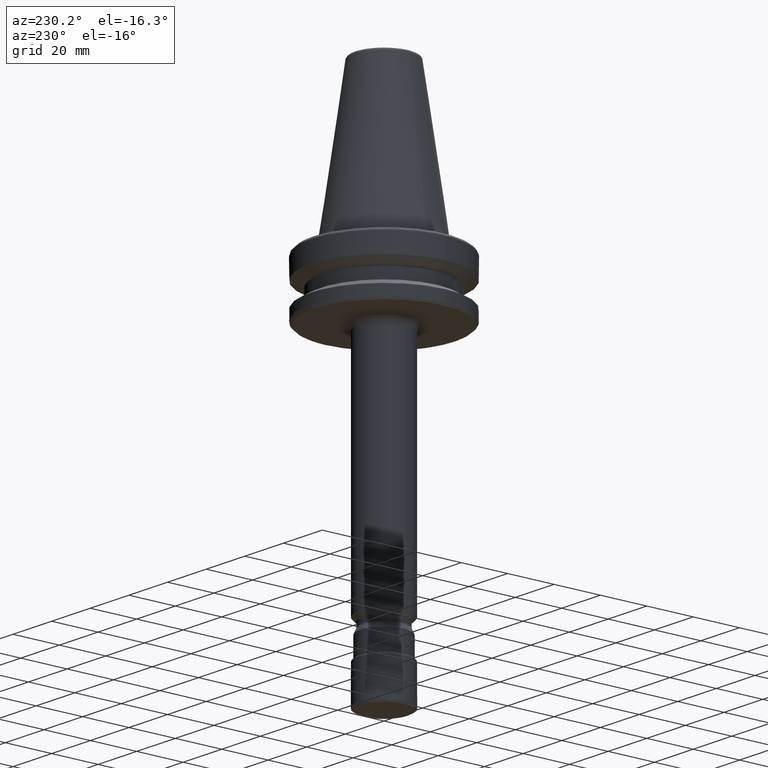
[diagram: clean part render]
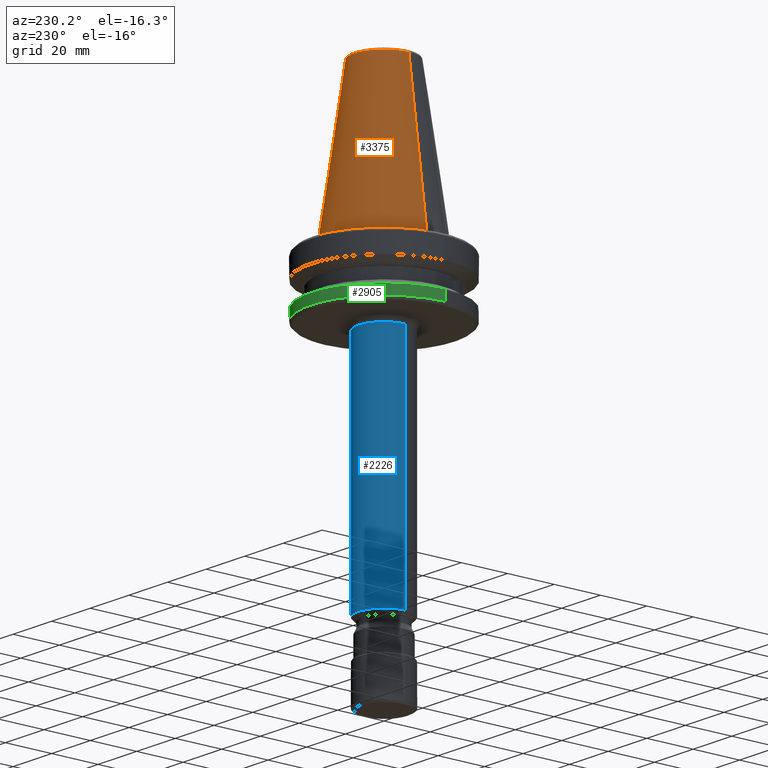
[diagram: same view with three faces highlighted in distinct colors, each labeled with its STEP entity id]
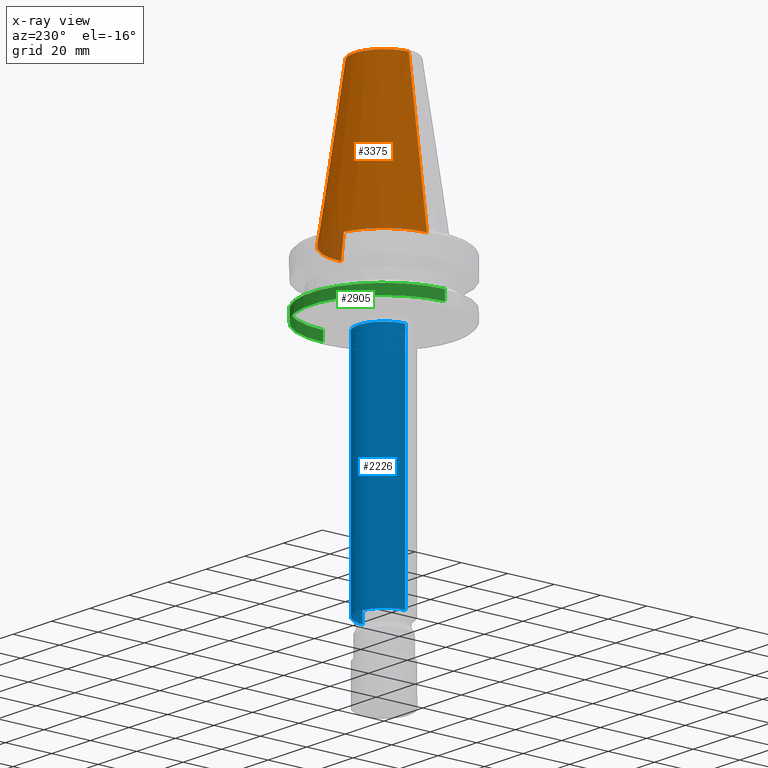
[diagram: x-ray of the same camera — body ghosted, the three highlighted faces saturated]
A machine part, auxiliary view with three faces highlighted in distinct colors.
The next image is the same camera in x-ray (body ghosted, the three faces saturated) — at least one of them is partly hidden behind the body in this view.
Their STEP definitions:

[orange] entity #3375 — the highlighted conical surface has half-angle 8.297 deg.
#78 = DIRECTION ( 'NONE',  ( 0.0000000000000000000, 0.0000000000000000000, 1.000000000000000000 ) ) ;
#94 = VERTEX_POINT ( 'NONE', #1288 ) ;
#200 = CARTESIAN_POINT ( 'NONE',  ( 0.0000000000000000000, 0.0000000000000000000, 64.54430822699997300 ) ) ;
#276 = EDGE_LOOP ( 'NONE', ( #1865, #1193, #1672, #1990 ) ) ;
#307 = EDGE_CURVE ( 'NONE', #1677, #94, #3556, .T. ) ;
#492 = DIRECTION ( 'NONE',  ( -1.000000000000000000, 8.881784197001252300E-016, 2.166339635943424900E-015 ) ) ;
#659 = CARTESIAN_POINT ( 'NONE',  ( -12.81219950700000300, 0.0000000000000000000, 64.54430822700000200 ) ) ;
#679 = VERTEX_POINT ( 'NONE', #2892 ) ;
#750 = CONICAL_SURFACE ( 'NONE', #3480, 12.81219950700000300, 0.1448138465489547400 ) ;
#826 = CARTESIAN_POINT ( 'NONE',  ( 22.22499999999999800, 2.721777511104992100E-015, 0.0000000000000000000 ) ) ;
#1088 = VERTEX_POINT ( 'NONE', #1454 ) ;
#1132 = CARTESIAN_POINT ( 'NONE',  ( 12.81219950700000300, 1.569041911628485000E-015, 64.54430822700000200 ) ) ;
#1147 = LINE ( 'NONE', #659, #2209 ) ;
#1193 = ORIENTED_EDGE ( 'NONE', *, *, #3555, .T. ) ;
#1288 = CARTESIAN_POINT ( 'NONE',  ( -22.22499999999999800, 0.0000000000000000000, 0.0000000000000000000 ) ) ;
#1454 = CARTESIAN_POINT ( 'NONE',  ( 12.81219950700000400, -3.153391254849763600E-009, 64.54430822699998800 ) ) ;
#1672 = ORIENTED_EDGE ( 'NONE', *, *, #307, .T. ) ;
#1677 = VERTEX_POINT ( 'NONE', #826 ) ;
#1815 = LINE ( 'NONE', #1132, #2782 ) ;
#1865 = ORIENTED_EDGE ( 'NONE', *, *, #3374, .F. ) ;
#1962 = CARTESIAN_POINT ( 'NONE',  ( 0.0000000000000000000, 0.0000000000000000000, 0.0000000000000000000 ) ) ;
#1990 = ORIENTED_EDGE ( 'NONE', *, *, #3138, .F. ) ;
#2204 = DIRECTION ( 'NONE',  ( -0.0000000000000000000, -0.0000000000000000000, 1.000000000000000000 ) ) ;
#2209 = VECTOR ( 'NONE', #2637, 1000.000000000000000 ) ;
#2276 = DIRECTION ( 'NONE',  ( 0.1443082272688266400, 1.767266086153973400E-017, -0.9895327864919528600 ) ) ;
#2297 = FACE_OUTER_BOUND ( 'NONE', #276, .T. ) ;
#2620 = AXIS2_PLACEMENT_3D ( 'NONE', #1962, #78, #3588 ) ;
#2637 = DIRECTION ( 'NONE',  ( -0.1443082272688266400, 0.0000000000000000000, -0.9895327864919528600 ) ) ;
#2717 = CARTESIAN_POINT ( 'NONE',  ( 0.0000000000000000000, 0.0000000000000000000, 64.54430822700000200 ) ) ;
#2782 = VECTOR ( 'NONE', #2276, 1000.000000000000000 ) ;
#2892 = CARTESIAN_POINT ( 'NONE',  ( -12.81219950700000400, -4.601815527545417700E-010, 64.54430822699998800 ) ) ;
#2974 = DIRECTION ( 'NONE',  ( -1.000000000000000000, 0.0000000000000000000, 0.0000000000000000000 ) ) ;
#3138 = EDGE_CURVE ( 'NONE', #679, #94, #1147, .T. ) ;
#3297 = AXIS2_PLACEMENT_3D ( 'NONE', #200, #2204, #492 ) ;
#3374 = EDGE_CURVE ( 'NONE', #1088, #679, #3482, .T. ) ;
#3375 = ADVANCED_FACE ( 'NONE', ( #2297 ), #750, .T. ) ;
#3480 = AXIS2_PLACEMENT_3D ( 'NONE', #2717, #3507, #2974 ) ;
#3482 = CIRCLE ( 'NONE', #3297, 12.81219950700000300 ) ;
#3507 = DIRECTION ( 'NONE',  ( 0.0000000000000000000, 0.0000000000000000000, -1.000000000000000000 ) ) ;
#3555 = EDGE_CURVE ( 'NONE', #1088, #1677, #1815, .T. ) ;
#3556 = CIRCLE ( 'NONE', #2620, 22.22499999999999800 ) ;
#3588 = DIRECTION ( 'NONE',  ( 1.000000000000000000, 0.0000000000000000000, 0.0000000000000000000 ) ) ;

[blue] entity #2226 — the highlighted cylindrical surface (edge-blend (fillet) strip) has radius 11 mm, axis along (0, -0, 1).
#104 = CARTESIAN_POINT ( 'NONE',  ( -11.00000000000000000, 1.347111479062088400E-015, -127.8500000000000200 ) ) ;
#227 = VERTEX_POINT ( 'NONE', #104 ) ;
#584 = DIRECTION ( 'NONE',  ( 0.0000000000000000000, 0.0000000000000000000, 1.000000000000000000 ) ) ;
#710 = ORIENTED_EDGE ( 'NONE', *, *, #3230, .T. ) ;
#853 = CIRCLE ( 'NONE', #1129, 11.00000000000000000 ) ;
#867 = CARTESIAN_POINT ( 'NONE',  ( 0.0000000000000000000, 0.0000000000000000000, -28.99999999999999600 ) ) ;
#881 = DIRECTION ( 'NONE',  ( 0.0000000000000000000, 0.0000000000000000000, 1.000000000000000000 ) ) ;
#917 = CARTESIAN_POINT ( 'NONE',  ( 11.00000000000000000, -4.938649563580315600E-010, -28.99999999999999600 ) ) ;
#986 = CARTESIAN_POINT ( 'NONE',  ( 11.00000000000000000, 0.0000000000000000000, -127.8499999999999900 ) ) ;
#999 = ORIENTED_EDGE ( 'NONE', *, *, #2107, .F. ) ;
#1036 = FACE_OUTER_BOUND ( 'NONE', #2508, .T. ) ;
#1129 = AXIS2_PLACEMENT_3D ( 'NONE', #867, #584, #1171 ) ;
#1171 = DIRECTION ( 'NONE',  ( 1.000000000000000000, 0.0000000000000000000, -3.154042683594194600E-016 ) ) ;
#1177 = ORIENTED_EDGE ( 'NONE', *, *, #2913, .T. ) ;
#1183 = AXIS2_PLACEMENT_3D ( 'NONE', #2572, #881, #2830 ) ;
#1185 = CIRCLE ( 'NONE', #1183, 11.00000000000000000 ) ;
#1188 = VERTEX_POINT ( 'NONE', #917 ) ;
#1275 = DIRECTION ( 'NONE',  ( 0.0000000000000000000, -0.0000000000000000000, 1.000000000000000000 ) ) ;
#1459 = ORIENTED_EDGE ( 'NONE', *, *, #3329, .F. ) ;
#1812 = VERTEX_POINT ( 'NONE', #2794 ) ;
#1930 = DIRECTION ( 'NONE',  ( 1.000000000000000000, 0.0000000000000000000, 0.0000000000000000000 ) ) ;
#2056 = DIRECTION ( 'NONE',  ( 0.0000000000000000000, -0.0000000000000000000, 1.000000000000000000 ) ) ;
#2090 = AXIS2_PLACEMENT_3D ( 'NONE', #2259, #2056, #1930 ) ;
#2107 = EDGE_CURVE ( 'NONE', #1188, #1812, #853, .T. ) ;
#2156 = DIRECTION ( 'NONE',  ( 0.0000000000000000000, -0.0000000000000000000, 1.000000000000000000 ) ) ;
#2226 = ADVANCED_FACE ( 'NONE', ( #1036 ), #3082, .T. ) ;
#2257 = VERTEX_POINT ( 'NONE', #3027 ) ;
#2259 = CARTESIAN_POINT ( 'NONE',  ( 0.0000000000000000000, 0.0000000000000000000, -127.8499999999999900 ) ) ;
#2459 = VECTOR ( 'NONE', #2156, 1000.000000000000000 ) ;
#2465 = LINE ( 'NONE', #3172, #2540 ) ;
#2508 = EDGE_LOOP ( 'NONE', ( #1177, #710, #999, #1459 ) ) ;
#2535 = LINE ( 'NONE', #986, #2459 ) ;
#2540 = VECTOR ( 'NONE', #1275, 1000.000000000000000 ) ;
#2572 = CARTESIAN_POINT ( 'NONE',  ( 0.0000000000000000000, 0.0000000000000000000, -127.8500000000000200 ) ) ;
#2794 = CARTESIAN_POINT ( 'NONE',  ( -11.00000000000000000, -3.384206570502963900E-009, -28.99999999999999600 ) ) ;
#2830 = DIRECTION ( 'NONE',  ( 1.000000000000000000, 0.0000000000000000000, 2.523234146875355700E-015 ) ) ;
#2913 = EDGE_CURVE ( 'NONE', #2257, #227, #1185, .T. ) ;
#3027 = CARTESIAN_POINT ( 'NONE',  ( 11.00000000000000000, 0.0000000000000000000, -127.8499999999999900 ) ) ;
#3082 = CYLINDRICAL_SURFACE ( 'NONE', #2090, 11.00000000000000000 ) ;
#3172 = CARTESIAN_POINT ( 'NONE',  ( -11.00000000000000000, 1.347111479062088400E-015, -127.8499999999999900 ) ) ;
#3230 = EDGE_CURVE ( 'NONE', #227, #1812, #2465, .T. ) ;
#3329 = EDGE_CURVE ( 'NONE', #2257, #1188, #2535, .T. ) ;

[green] entity #2905 — the highlighted cylindrical surface (partial cylindrical patch) has radius 31.5 mm, axis along (-0, 0, 1).
#42 = ORIENTED_EDGE ( 'NONE', *, *, #210, .F. ) ;
#210 = EDGE_CURVE ( 'NONE', #1035, #1547, #465, .T. ) ;
#320 = ORIENTED_EDGE ( 'NONE', *, *, #748, .F. ) ;
#335 = EDGE_LOOP ( 'NONE', ( #987, #1720, #320, #42 ) ) ;
#406 = LINE ( 'NONE', #1375, #859 ) ;
#435 = CARTESIAN_POINT ( 'NONE',  ( 31.50000000000000000, 0.0000000000000000000, -25.83431457500000100 ) ) ;
#465 = LINE ( 'NONE', #435, #711 ) ;
#497 = DIRECTION ( 'NONE',  ( 1.000000000000000000, 0.0000000000000000000, 0.0000000000000000000 ) ) ;
#630 = CYLINDRICAL_SURFACE ( 'NONE', #1755, 31.50000000000000000 ) ;
#711 = VECTOR ( 'NONE', #2012, 1000.000000000000000 ) ;
#748 = EDGE_CURVE ( 'NONE', #1547, #1184, #1508, .T. ) ;
#859 = VECTOR ( 'NONE', #2741, 1000.000000000000000 ) ;
#987 = ORIENTED_EDGE ( 'NONE', *, *, #1580, .F. ) ;
#1035 = VERTEX_POINT ( 'NONE', #3331 ) ;
#1176 = CARTESIAN_POINT ( 'NONE',  ( 0.0000000000000000000, 0.0000000000000000000, -21.59009203337424100 ) ) ;
#1184 = VERTEX_POINT ( 'NONE', #2854 ) ;
#1290 = EDGE_CURVE ( 'NONE', #1902, #1184, #406, .T. ) ;
#1375 = CARTESIAN_POINT ( 'NONE',  ( -31.50000000000000000, 3.857637417314162700E-015, -25.83431457500000100 ) ) ;
#1473 = DIRECTION ( 'NONE',  ( 1.000000000000000000, 0.0000000000000000000, 0.0000000000000000000 ) ) ;
#1508 = CIRCLE ( 'NONE', #3246, 31.50000000000000000 ) ;
#1547 = VERTEX_POINT ( 'NONE', #2722 ) ;
#1580 = EDGE_CURVE ( 'NONE', #1902, #1035, #3398, .T. ) ;
#1720 = ORIENTED_EDGE ( 'NONE', *, *, #1290, .T. ) ;
#1755 = AXIS2_PLACEMENT_3D ( 'NONE', #2480, #3332, #497 ) ;
#1760 = CARTESIAN_POINT ( 'NONE',  ( -31.50000000000000000, 0.0000000000000000000, -25.83431457500000100 ) ) ;
#1902 = VERTEX_POINT ( 'NONE', #1760 ) ;
#2012 = DIRECTION ( 'NONE',  ( -5.507058653894625200E-017, 0.0000000000000000000, 1.000000000000000000 ) ) ;
#2049 = AXIS2_PLACEMENT_3D ( 'NONE', #2468, #3561, #2890 ) ;
#2468 = CARTESIAN_POINT ( 'NONE',  ( 0.0000000000000000000, 0.0000000000000000000, -25.83431457499999700 ) ) ;
#2480 = CARTESIAN_POINT ( 'NONE',  ( 0.0000000000000000000, 0.0000000000000000000, -25.83431457500000100 ) ) ;
#2650 = FACE_OUTER_BOUND ( 'NONE', #335, .T. ) ;
#2722 = CARTESIAN_POINT ( 'NONE',  ( 31.50000000000000000, 0.0000000000000000000, -21.59009203337424100 ) ) ;
#2741 = DIRECTION ( 'NONE',  ( -5.507058653894625200E-017, 0.0000000000000000000, 1.000000000000000000 ) ) ;
#2854 = CARTESIAN_POINT ( 'NONE',  ( -31.50000000000000000, 3.857637417314162700E-015, -21.59009203337424100 ) ) ;
#2890 = DIRECTION ( 'NONE',  ( 0.0000000000000000000, 1.000000000000000000, -2.202823461557850800E-016 ) ) ;
#2905 = ADVANCED_FACE ( 'NONE', ( #2650 ), #630, .T. ) ;
#3097 = DIRECTION ( 'NONE',  ( -0.0000000000000000000, -0.0000000000000000000, 1.000000000000000000 ) ) ;
#3246 = AXIS2_PLACEMENT_3D ( 'NONE', #1176, #3097, #1473 ) ;
#3331 = CARTESIAN_POINT ( 'NONE',  ( 31.50000000000000000, -2.865967179147670600E-031, -25.83431457500000100 ) ) ;
#3332 = DIRECTION ( 'NONE',  ( -5.507058653894625200E-017, 0.0000000000000000000, 1.000000000000000000 ) ) ;
#3398 = CIRCLE ( 'NONE', #2049, 31.49999999999999300 ) ;
#3561 = DIRECTION ( 'NONE',  ( -0.0000000000000000000, -2.753529326947312900E-016, -1.000000000000000000 ) ) ;